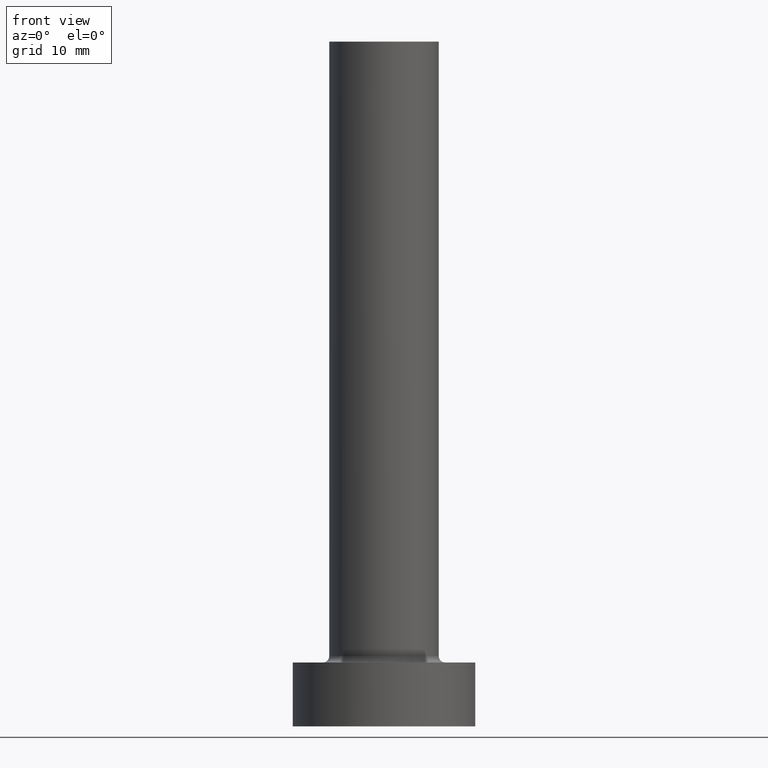
[diagram: clean part render]
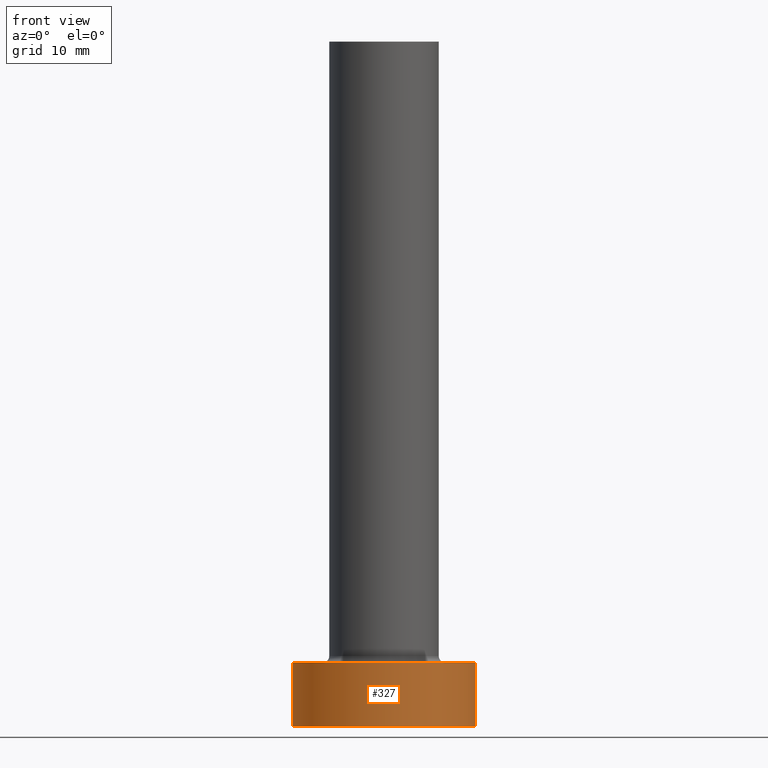
[diagram: same view with one face highlighted and labeled with its STEP entity id]
A machine part, front view. The second image highlights one B-rep face of the part: STEP entity #327.
In plain terms, the highlighted cylindrical surface (partial cylindrical patch) has radius 10 mm, axis along (-0, -0, -1).
Its self-contained STEP definition (entity closure, byte-faithful):
#21 = DIRECTION ( 'NONE',  ( 1.000000000000000000, 0.000000000000000000, 0.000000000000000000 ) ) ;
#24 = CARTESIAN_POINT ( 'NONE',  ( 0.000000000000000000, 0.000000000000000000, 7.000000000000000000 ) ) ;
#36 = LINE ( 'NONE', #308, #379 ) ;
#55 = ORIENTED_EDGE ( 'NONE', *, *, #210, .T. ) ;
#56 = EDGE_CURVE ( 'NONE', #204, #118, #233, .T. ) ;
#58 = DIRECTION ( 'NONE',  ( 0.000000000000000000, 0.000000000000000000, 1.000000000000000000 ) ) ;
#59 = ORIENTED_EDGE ( 'NONE', *, *, #218, .F. ) ;
#71 = CARTESIAN_POINT ( 'NONE',  ( -10.00000000000000000, 0.000000000000000000, 0.000000000000000000 ) ) ;
#81 = CARTESIAN_POINT ( 'NONE',  ( 10.00000000000000000, 1.224646799147353256E-15, 0.000000000000000000 ) ) ;
#87 = FACE_OUTER_BOUND ( 'NONE', #196, .T. ) ;
#89 = CARTESIAN_POINT ( 'NONE',  ( 0.000000000000000000, 0.000000000000000000, 7.000000000000000000 ) ) ;
#118 = VERTEX_POINT ( 'NONE', #71 ) ;
#123 = ORIENTED_EDGE ( 'NONE', *, *, #56, .T. ) ;
#132 = CARTESIAN_POINT ( 'NONE',  ( -10.00000000000000000, 0.000000000000000000, 7.000000000000000000 ) ) ;
#156 = VERTEX_POINT ( 'NONE', #81 ) ;
#177 = DIRECTION ( 'NONE',  ( -0.000000000000000000, -0.000000000000000000, -1.000000000000000000 ) ) ;
#178 = AXIS2_PLACEMENT_3D ( 'NONE', #381, #335, #21 ) ;
#190 = CIRCLE ( 'NONE', #178, 10.00000000000000000 ) ;
#196 = EDGE_LOOP ( 'NONE', ( #226, #59, #123, #55 ) ) ;
#199 = VERTEX_POINT ( 'NONE', #325 ) ;
#200 = DIRECTION ( 'NONE',  ( -0.000000000000000000, -0.000000000000000000, -1.000000000000000000 ) ) ;
#204 = VERTEX_POINT ( 'NONE', #132 ) ;
#210 = EDGE_CURVE ( 'NONE', #118, #156, #190, .T. ) ;
#218 = EDGE_CURVE ( 'NONE', #204, #199, #378, .T. ) ;
#226 = ORIENTED_EDGE ( 'NONE', *, *, #456, .F. ) ;
#233 = LINE ( 'NONE', #340, #305 ) ;
#303 = CYLINDRICAL_SURFACE ( 'NONE', #434, 10.00000000000000000 ) ;
#305 = VECTOR ( 'NONE', #390, 1000.000000000000000 ) ;
#308 = CARTESIAN_POINT ( 'NONE',  ( 10.00000000000000000, 1.224646799147353256E-15, 7.000000000000000000 ) ) ;
#325 = CARTESIAN_POINT ( 'NONE',  ( 10.00000000000000000, 1.224646799147353256E-15, 7.000000000000000000 ) ) ;
#327 = ADVANCED_FACE ( 'NONE', ( #87 ), #303, .T. ) ;
#335 = DIRECTION ( 'NONE',  ( 0.000000000000000000, 0.000000000000000000, 1.000000000000000000 ) ) ;
#339 = DIRECTION ( 'NONE',  ( -1.000000000000000000, 0.000000000000000000, 0.000000000000000000 ) ) ;
#340 = CARTESIAN_POINT ( 'NONE',  ( -10.00000000000000000, 0.000000000000000000, 7.000000000000000000 ) ) ;
#378 = CIRCLE ( 'NONE', #439, 10.00000000000000000 ) ;
#379 = VECTOR ( 'NONE', #177, 1000.000000000000000 ) ;
#381 = CARTESIAN_POINT ( 'NONE',  ( 0.000000000000000000, 0.000000000000000000, 0.000000000000000000 ) ) ;
#390 = DIRECTION ( 'NONE',  ( -0.000000000000000000, -0.000000000000000000, -1.000000000000000000 ) ) ;
#434 = AXIS2_PLACEMENT_3D ( 'NONE', #89, #200, #339 ) ;
#439 = AXIS2_PLACEMENT_3D ( 'NONE', #24, #58, #452 ) ;
#452 = DIRECTION ( 'NONE',  ( 1.000000000000000000, 0.000000000000000000, 0.000000000000000000 ) ) ;
#456 = EDGE_CURVE ( 'NONE', #199, #156, #36, .T. ) ;